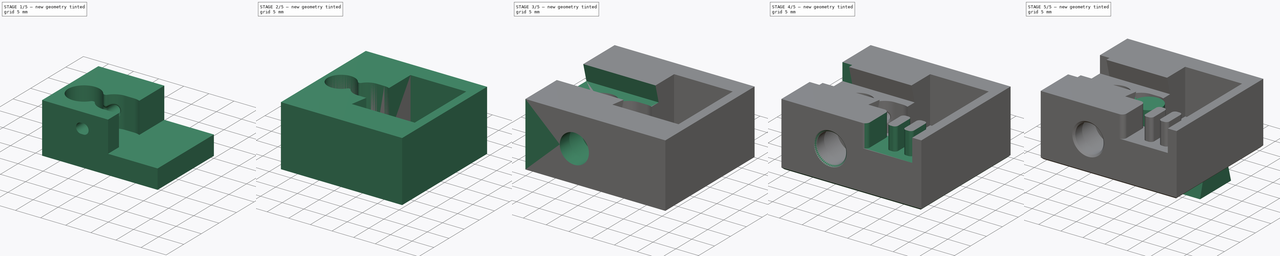
[diagram: build sequence overview — one tinted view per stage of 5, left to right]
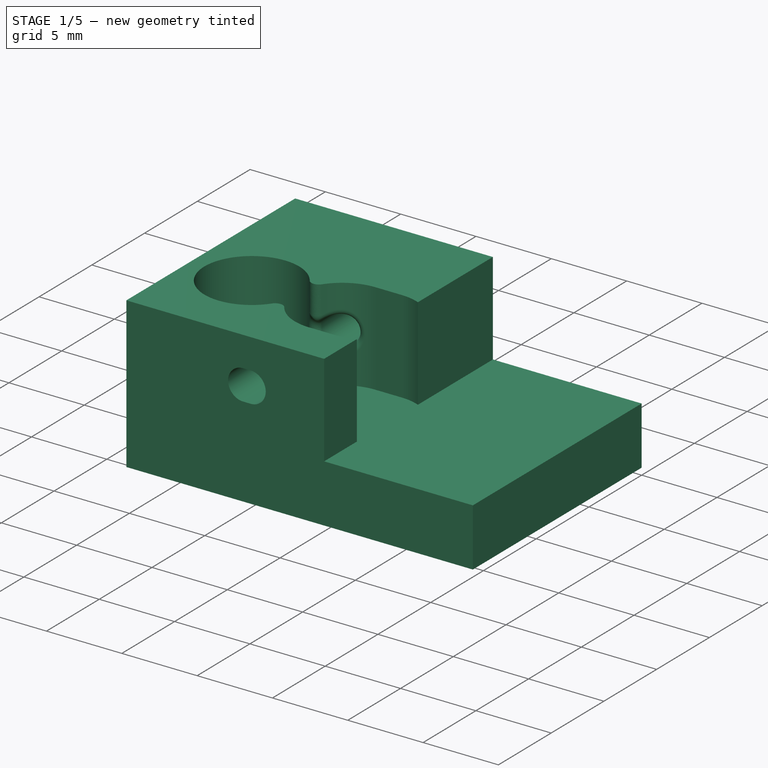
[diagram: stage 1 of 5 — iso view after this stage's code; geometry added in this stage tinted green]
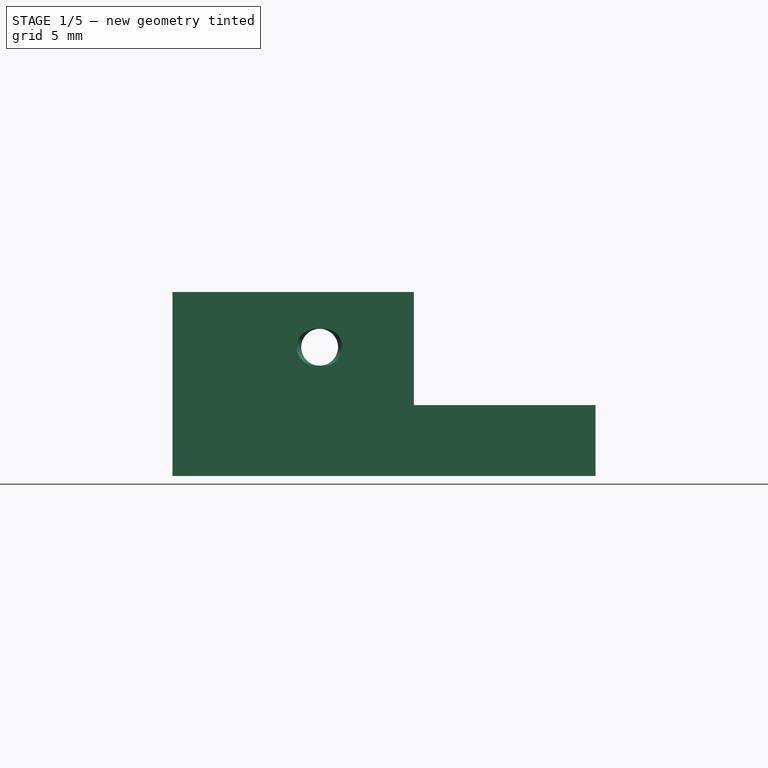
[diagram: stage 1 of 5 — front view after this stage's code; geometry added in this stage tinted green]
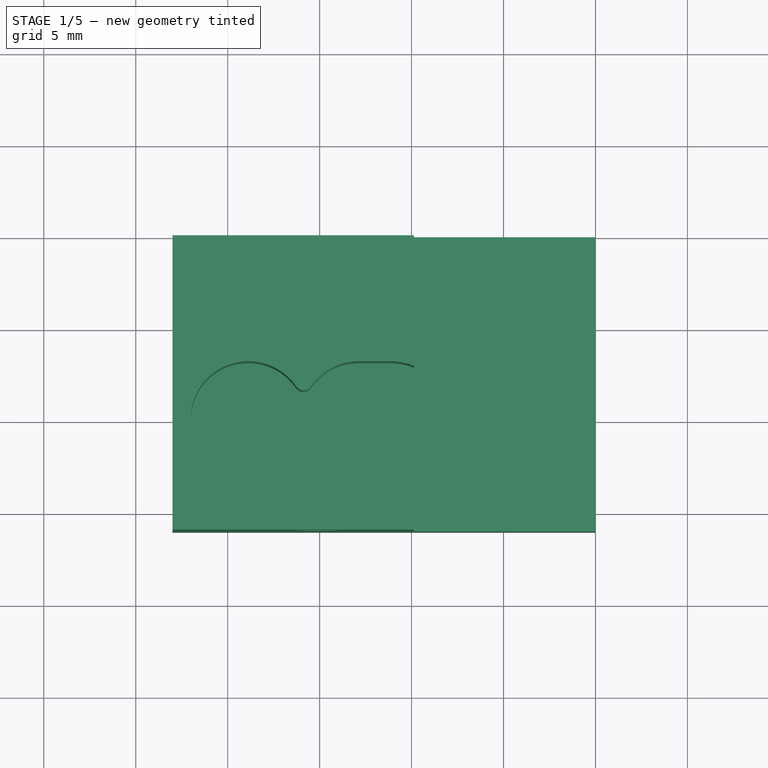
[diagram: stage 1 of 5 — top view after this stage's code; geometry added in this stage tinted green]
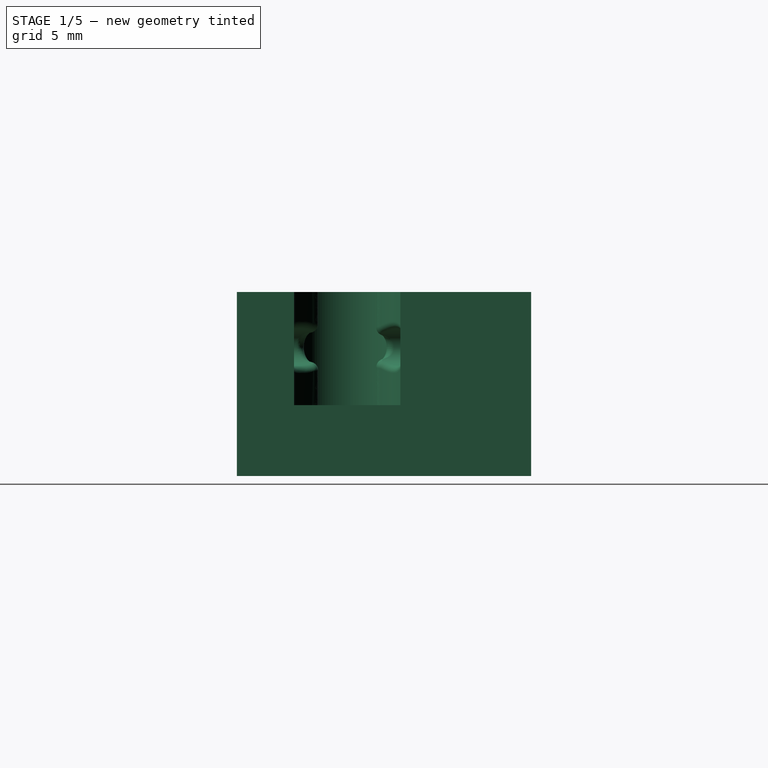
[diagram: stage 1 of 5 — right view after this stage's code; geometry added in this stage tinted green]
FCSTD DOCUMENT  (FreeCAD 0.19R24366 (Git))
Label: filament-sensor-draf
License: All rights reserved
LicenseURL: http://en.wikipedia.org/wiki/All_rights_reserved
objects: Sketcher::SketchObject×23, PartDesign::Pocket×18, PartDesign::Pad×7, PartDesign::Fillet×4, Part::Cylinder×3, PartDesign::Chamfer×2, PartDesign::Body×2, Part::Feature×1
note: 91 computed .brp shape members not serialized (recipe doc carries the construction recipe); baked Part::Feature solids carry a one-line shape summary decoded from their .brp

FEATURE [Sketcher::SketchObject] Sketch
  FullyConstrained = true
  MapMode = 5
  Support = -> [XY_Plane]
  sketch-geometry (4):
    g0: LineSegment StartX=-8 StartY=10 StartZ=0 EndX=15 EndY=10 EndZ=0
    g1: LineSegment StartX=15 StartY=10 StartZ=0 EndX=15 EndY=-6 EndZ=0
    g2: LineSegment StartX=15 StartY=-6 StartZ=0 EndX=-8 EndY=-6 EndZ=0
    g3: LineSegment StartX=-8 StartY=-6 StartZ=0 EndX=-8 EndY=10 EndZ=0
  constraints (12):
    c: Coincident(g0,g1)
    c: Coincident(g1,g2)
    c: Coincident(g2,g3)
    c: Coincident(g3,g0)
    c: Horizontal(g0)
    c: Horizontal(g2)
    c: Vertical(g1)
    c: Vertical(g3)
    c: DistanceY(g-1,g0) = 10
    c: DistanceY(g2,g-1) = 6
    c: DistanceX(g0,g-1) = 8
    c: DistanceX(g-1,g0) = 15
FEATURE [PartDesign::Pad] Pad
  Direction = (1,1,1)
  Length = 10
  Length2 = 100
  Profile = -> Sketch
  Type = 0
FEATURE [Sketcher::SketchObject] Sketch001
  FullyConstrained = false
  MapMode = 5
  Placement = pos=(0,0,10) rot=(0,0,1;0rad)
  Support = -> [Pad]
  sketch-geometry (6):
    g0: ArcOfCircle CenterX=-3.875 CenterY=0 CenterZ=0 NormalX=0 NormalY=0 NormalZ=1 AngleXU=0 Radius=3.15 StartAngle=0.309845 EndAngle=5.97334
    g1: ArcOfCircle CenterX=2.125 CenterY=0 CenterZ=0 NormalX=0 NormalY=0 NormalZ=1 AngleXU=0 Radius=3.15 StartAngle=1.5708 EndAngle=2.83175
    g2: ArcOfCircle CenterX=3.875 CenterY=-1e-16 CenterZ=0 NormalX=0 NormalY=0 NormalZ=1 AngleXU=0 Radius=3.15 StartAngle=4.71239 EndAngle=7.85398
    g3: LineSegment StartX=2.125 StartY=-3.15 StartZ=0 EndX=3.875 EndY=-3.15 EndZ=0
    g4: LineSegment StartX=2.125 StartY=3.15 StartZ=0 EndX=3.875 EndY=3.15 EndZ=0
    g5: ArcOfCircle CenterX=2.125 CenterY=0 CenterZ=0 NormalX=0 NormalY=0 NormalZ=1 AngleXU=0 Radius=3.15 StartAngle=3.45144 EndAngle=4.71239
  constraints (17):
    c: PointOnObject(g0,g-1)
    c: Tangent(g1,g4) = 1.5708
    c: Coincident(g5,g3) = -1.5708
    c: Tangent(g3,g2) = -1.5708
    c: Tangent(g4,g2) = 1.5708
    c: Horizontal(g3)
    c: Equal(g1,g2)
    c: PointOnObject(g1,g-1)
    c: Equal(g0,g1)
    c: Radius(g0) = 3.15
    c: DistanceX(g0,g-1) = 3.875
    c: DistanceX(g-1,g1) = 2.125
    c: DistanceX(g1,g2) = 1.75
    c: Equal(g1,g5)
    c: Coincident(g1,g5)
    c: Coincident(g0,g1)
    c: Coincident(g0,g5)
FEATURE [PartDesign::Pocket] Pocket
  BaseFeature = -> Pad
  Length = 6.15
  Length2 = 100
  Profile = -> Sketch001
  Type = 0
FEATURE [PartDesign::Fillet] Fillet
  Base = -> Pocket [Edge28,Edge20]
  BaseFeature = -> Pocket
  Radius = 0.5
  SupportTransform = false
FEATURE [Sketcher::SketchObject] Sketch002
  FullyConstrained = true
  MapMode = 5
  Placement = pos=(0,10,0) rot=(0,0.707107,0.707107;3.14159rad)
  Support = -> [Fillet]
  sketch-geometry (1):
    g0: Circle CenterX=0 CenterY=7 CenterZ=0 NormalX=0 NormalY=0 NormalZ=1 AngleXU=0 Radius=1
  constraints (3):
    c: PointOnObject(g0,g-2)
    c: DistanceY(g-1,g0) = 7
    c: Radius(g0) = 1
FEATURE [PartDesign::Pocket] Pocket001
  BaseFeature = -> Fillet
  Length = 10
  Length2 = 100
  Profile = -> Sketch002
  Type = 0
FEATURE [Sketcher::SketchObject] Sketch003
  FullyConstrained = true
  MapMode = 5
  Placement = pos=(0,-6,0) rot=(1,0,0;1.5708rad)
  Support = -> [Pocket001]
  sketch-geometry (4):
    g0: ArcOfCircle CenterX=-0.25 CenterY=7 CenterZ=0 NormalX=0 NormalY=0 NormalZ=1 AngleXU=0 Radius=1 StartAngle=1.5708 EndAngle=4.71239
    g1: ArcOfCircle CenterX=0.25 CenterY=7 CenterZ=0 NormalX=0 NormalY=0 NormalZ=1 AngleXU=0 Radius=1 StartAngle=4.71239 EndAngle=7.85398
    g2: LineSegment StartX=-0.25 StartY=6 StartZ=0 EndX=0.25 EndY=6 EndZ=0
    g3: LineSegment StartX=-0.25 StartY=8 StartZ=0 EndX=0.25 EndY=8 EndZ=0
  constraints (10):
    c: Tangent(g0,g3) = 1.5708
    c: Tangent(g0,g2) = -1.5708
    c: Tangent(g2,g1) = -1.5708
    c: Tangent(g3,g1) = 1.5708
    c: Horizontal(g2)
    c: Equal(g0,g1)
    c: DistanceY(g-1,g0) = 7
    c: Radius(g0) = 1
    c: DistanceX(g0,g1) = 0.5
    c: DistanceX(g0,g-1) = 0.25
FEATURE [PartDesign::Pocket] Pocket002
  BaseFeature = -> Pocket001
  Length = 5
  Length2 = 100
  Profile = -> Sketch003
  Type = 0
FEATURE [PartDesign::Fillet] Fillet001
  Base = -> Pocket002 [Edge18,Edge29]
  BaseFeature = -> Pocket002
  Radius = 0.4
  SupportTransform = false
FEATURE [Sketcher::SketchObject] Sketch004
  ExternalGeometry = -> [Fillet001]
  FullyConstrained = true
  MapMode = 5
  Placement = pos=(0,0,10) rot=(0,0,1;0rad)
  Support = -> [Fillet001]
  sketch-geometry (5):
    g0: LineSegment StartX=15 StartY=10 StartZ=0 EndX=5.125 EndY=10 EndZ=0
    g1: LineSegment StartX=5.125 StartY=10 StartZ=0 EndX=5.125 EndY=-6 EndZ=0
    g2: LineSegment StartX=5.125 StartY=-6 StartZ=0 EndX=15 EndY=-6 EndZ=0
    g3: LineSegment StartX=15 StartY=-6 StartZ=0 EndX=15 EndY=10 EndZ=0
    g4: LineSegment StartX=3.875 StartY=-1e-16 StartZ=0 EndX=7.025 EndY=-1e-16 EndZ=0
  constraints (14):
    c: Coincident(g0,g1)
    c: Coincident(g1,g2)
    c: Coincident(g2,g3)
    c: Coincident(g3,g0)
    c: Horizontal(g0)
    c: Horizontal(g2)
    c: Vertical(g1)
    c: Vertical(g3)
    c: Coincident(g0,g-3)
    c: PointOnObject(g1,g-4)
    c: Coincident(g4,g-5)
    c: PointOnObject(g4,g-5)
    c: Horizontal(g4)
    c: DistanceX(g1,g4) = 1.9
FEATURE [PartDesign::Pocket] Pocket003
  BaseFeature = -> Fillet001
  Length = 6.15
  Length2 = 100
  Profile = -> Sketch004
  Refine = true
  Type = 0
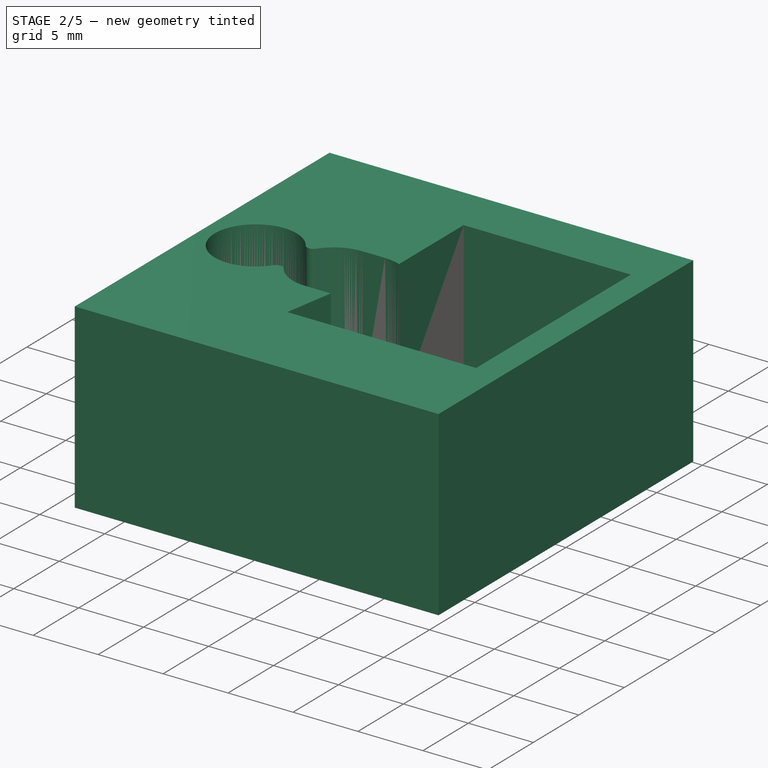
[diagram: stage 2 of 5 — iso view after this stage's code; geometry added in this stage tinted green]
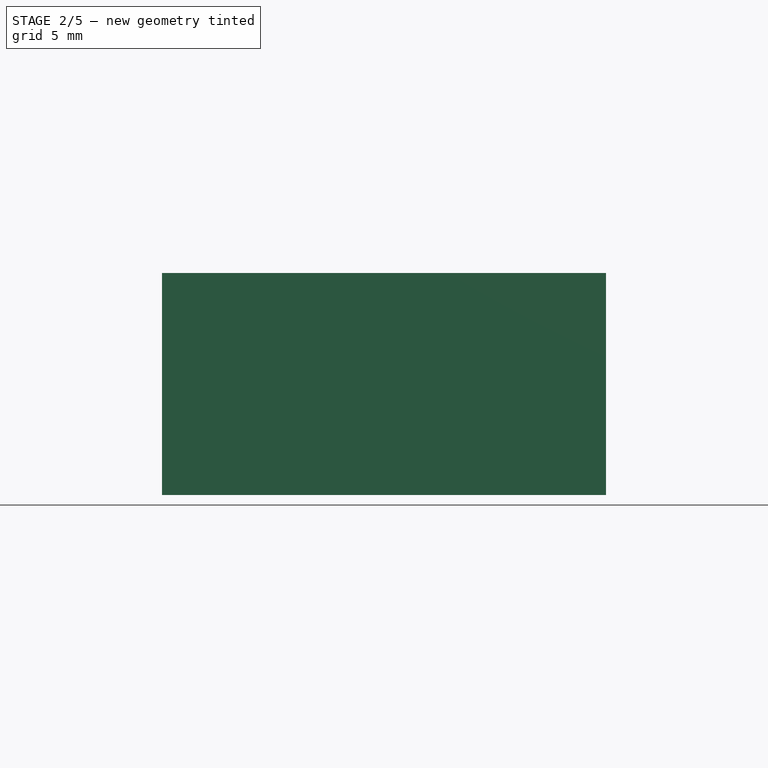
[diagram: stage 2 of 5 — front view after this stage's code; geometry added in this stage tinted green]
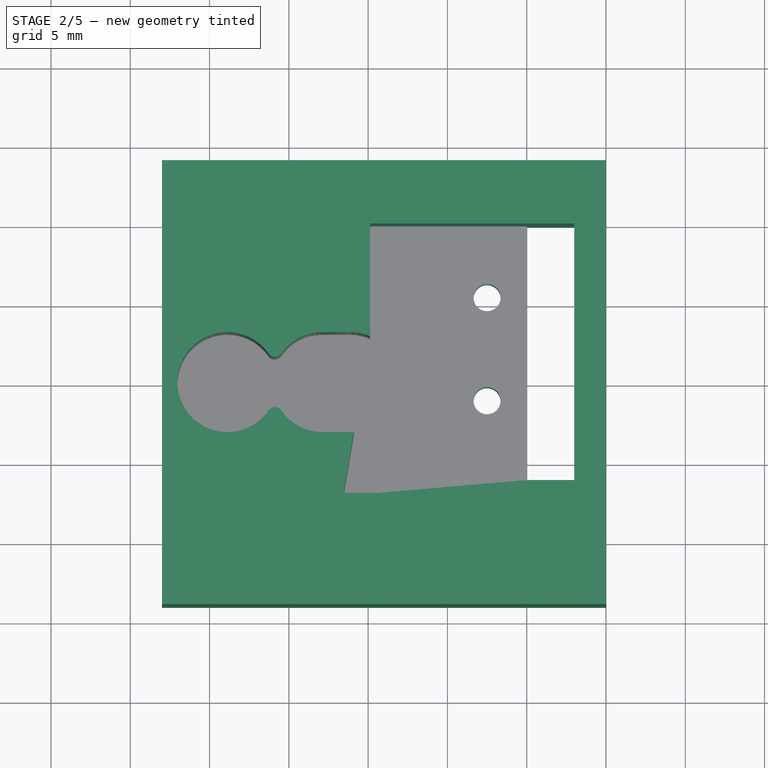
[diagram: stage 2 of 5 — top view after this stage's code; geometry added in this stage tinted green]
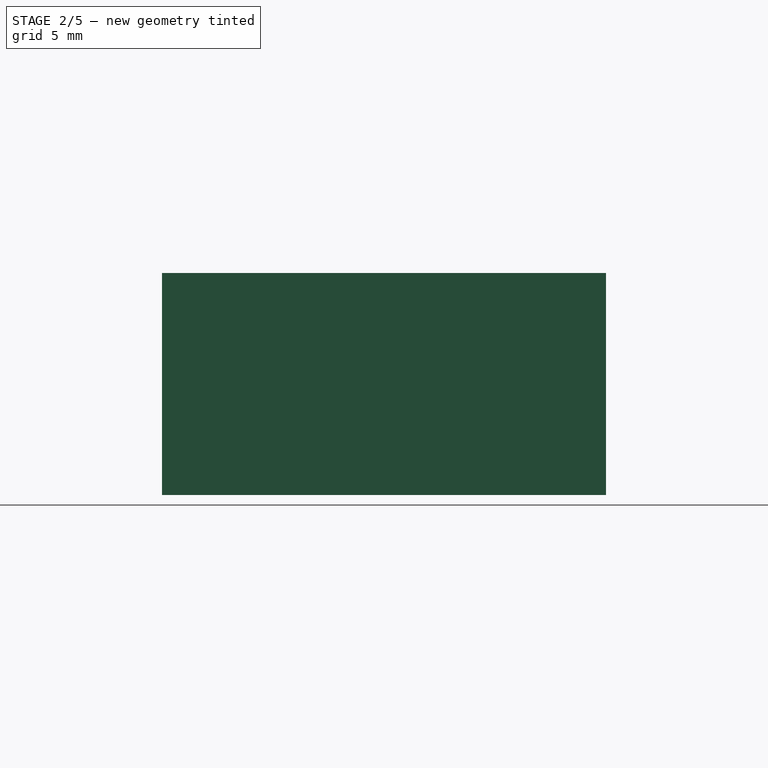
[diagram: stage 2 of 5 — right view after this stage's code; geometry added in this stage tinted green]
FEATURE [Sketcher::SketchObject] Sketch005
  ExternalGeometry = -> [Pocket003]
  FullyConstrained = true
  MapMode = 5
  Placement = pos=(0,0,3.85) rot=(0,0,1;0rad)
  Support = -> [Pocket003]
  sketch-geometry (2):
    g0: Circle CenterX=12.5 CenterY=5.5 CenterZ=0 NormalX=0 NormalY=0 NormalZ=1 AngleXU=0 Radius=0.85
    g1: Circle CenterX=12.5 CenterY=-1 CenterZ=0 NormalX=0 NormalY=0 NormalZ=1 AngleXU=0 Radius=0.85
  constraints (6):
    c: Vertical(g1,g0)
    c: Equal(g1,g0)
    c: DistanceX(g1,g-3) = 2.5
    c: DistanceY(g-3,g1) = 5
    c: DistanceY(g1,g0) = 6.5
    c: Radius(g0) = 0.85
FEATURE [PartDesign::Pocket] Pocket004
  BaseFeature = -> Pocket003
  Length = 5
  Length2 = 100
  Profile = -> Sketch005
  Type = 1
FEATURE [Sketcher::SketchObject] Sketch006
  ExternalGeometry = -> [Pocket004]
  FullyConstrained = true
  MapMode = 5
  Placement = pos=(0,0,10) rot=(0,0,1;0rad)
  Support = -> [Pocket004]
  sketch-geometry (3):
    g0: LineSegment StartX=5.125 StartY=2.89137 StartZ=0 EndX=3.625 EndY=-6 EndZ=0
    g1: LineSegment StartX=5.125 StartY=-6 StartZ=0 EndX=5.125 EndY=2.89137 EndZ=0
    g2: LineSegment StartX=5.125 StartY=-6 StartZ=0 EndX=3.625 EndY=-6 EndZ=0
  constraints (7):
    c: Coincident(g0,g-3)
    c: PointOnObject(g0,g-4)
    c: Coincident(g1,g-4)
    c: Coincident(g1,g0)
    c: Coincident(g2,g1)
    c: Coincident(g2,g0)
    c: DistanceX(g2,g2) = 1.5
FEATURE [PartDesign::Pocket] Pocket005
  BaseFeature = -> Pocket004
  Length = 6.15
  Length2 = 100
  Profile = -> Sketch006
  Refine = true
  Type = 0
FEATURE [Sketcher::SketchObject] Sketch007
  ExternalGeometry = -> [Pocket005]
  FullyConstrained = true
  MapMode = 5
  Placement = pos=(0,0,0) rot=(1,0,0;3.14159rad)
  Support = -> [Pocket005]
  sketch-geometry (8):
    g0: LineSegment StartX=-8 StartY=-10 StartZ=0 EndX=15 EndY=-10 EndZ=0
    g1: LineSegment StartX=15 StartY=-10 StartZ=0 EndX=15 EndY=6 EndZ=0
    g2: LineSegment StartX=15 StartY=6 StartZ=0 EndX=-8 EndY=6 EndZ=0
    g3: LineSegment StartX=-8 StartY=6 StartZ=0 EndX=-8 EndY=14 EndZ=0
    g4: LineSegment StartX=-8 StartY=14 StartZ=0 EndX=20 EndY=14 EndZ=0
    g5: LineSegment StartX=20 StartY=14 StartZ=0 EndX=20 EndY=-14 EndZ=0
    g6: LineSegment StartX=20 StartY=-14 StartZ=0 EndX=-8 EndY=-14 EndZ=0
    g7: LineSegment StartX=-8 StartY=-14 StartZ=0 EndX=-8 EndY=-10 EndZ=0
  constraints (20):
    c: Coincident(g-4,g0)
    c: Coincident(g0,g-5)
    c: Coincident(g0,g1)
    c: Coincident(g1,g-5)
    c: Coincident(g1,g2)
    c: Coincident(g2,g-3)
    c: Coincident(g2,g3)
    c: Vertical(g3)
    c: Coincident(g3,g4)
    c: Horizontal(g4)
    c: Coincident(g4,g5)
    c: Vertical(g5)
    c: Coincident(g5,g6)
    c: Horizontal(g6)
    c: Coincident(g6,g7)
    c: Coincident(g7,g0)
    c: Vertical(g7)
    c: DistanceY(g7,g7) = 4
    c: DistanceY(g3,g3) = 8
    c: DistanceX(g1,g4) = 5
FEATURE [PartDesign::Pad] Pad001
  BaseFeature = -> Pocket005
  Direction = (1,1,1)
  Length = 10
  Length2 = 100
  Profile = -> Sketch007
  Refine = true
  Reversed = true
  Type = 0
FEATURE [Sketcher::SketchObject] Sketch008
  ExternalGeometry = -> [Pad001]
  FullyConstrained = true
  MapMode = 5
  Placement = pos=(0,0,10) rot=(0,0,1;0rad)
  Support = -> [Pad001]
  sketch-geometry (4):
    g0: LineSegment StartX=15 StartY=10 StartZ=0 EndX=18 EndY=10 EndZ=0
    g1: LineSegment StartX=18 StartY=10 StartZ=0 EndX=18 EndY=-6 EndZ=0
    g2: LineSegment StartX=18 StartY=-6 StartZ=0 EndX=15 EndY=-6 EndZ=0
    g3: LineSegment StartX=15 StartY=-6 StartZ=0 EndX=15 EndY=10 EndZ=0
  constraints (11):
    c: Coincident(g0,g1)
    c: Coincident(g1,g2)
    c: Coincident(g2,g3)
    c: Coincident(g3,g0)
    c: Horizontal(g0)
    c: Horizontal(g2)
    c: Vertical(g1)
    c: Vertical(g3)
    c: Coincident(g0,g-3)
    c: Horizontal(g1,g-3)
    c: DistanceX(g0,g0) = 3
FEATURE [PartDesign::Pocket] Pocket006
  BaseFeature = -> Pad001
  Length = 5
  Length2 = 100
  Profile = -> Sketch008
  Type = 1
FEATURE [Sketcher::SketchObject] Sketch009
  ExternalGeometry = -> [Pocket006]
  FullyConstrained = true
  MapMode = 5
  Placement = pos=(0,0,10) rot=(0,0,1;0rad)
  Support = -> [Pocket006]
  sketch-geometry (4):
    g0: LineSegment StartX=3.625 StartY=-6 StartZ=0 EndX=3.4563 EndY=-7 EndZ=0
    g1: LineSegment StartX=3.4563 StartY=-7 StartZ=0 EndX=18 EndY=-7 EndZ=0
    g2: LineSegment StartX=18 StartY=-7 StartZ=0 EndX=18 EndY=-6 EndZ=0
    g3: LineSegment StartX=18 StartY=-6 StartZ=0 EndX=3.625 EndY=-6 EndZ=0
  constraints (10):
    c: Coincident(g-3,g0)
    c: Coincident(g0,g1)
    c: Horizontal(g1)
    c: Coincident(g1,g2)
    c: Coincident(g2,g-4)
    c: Coincident(g2,g3)
    c: Coincident(g3,g0)
    c: Vertical(g2)
    c: DistanceY(g2,g2) = 1
    c: Parallel(g0,g-5)
FEATURE [PartDesign::Pocket] Pocket007
  BaseFeature = -> Pocket006
  Length = 0
  Length2 = 100
  Profile = -> Sketch009
  Refine = true
  Type = 3
  UpToFace = -> Pocket006 [Face26]
FEATURE [PartDesign::Pad] Pad002
  BaseFeature = -> Pocket007
  Direction = (1,1,1)
  Length = 4
  Length2 = 100
  Profile = -> Pocket007 [Face5]
  Refine = true
  Type = 0
FEATURE [Sketcher::SketchObject] Sketch010
  FullyConstrained = true
  MapMode = 5
  Placement = pos=(0,14,0) rot=(0,0.707107,0.707107;3.14159rad)
  Support = -> [Pad002]
  sketch-geometry (1):
    g0: Circle CenterX=0 CenterY=7 CenterZ=0 NormalX=0 NormalY=0 NormalZ=1 AngleXU=0 Radius=3.2
  constraints (3):
    c: PointOnObject(g0,g-2)
    c: DistanceY(g-1,g0) = 7
    c: Radius(g0) = 3.2
FEATURE [PartDesign::Pocket] Pocket008
  BaseFeature = -> Pad002
  Length = 3
  Length2 = 100
  Profile = -> Sketch010
  Type = 0
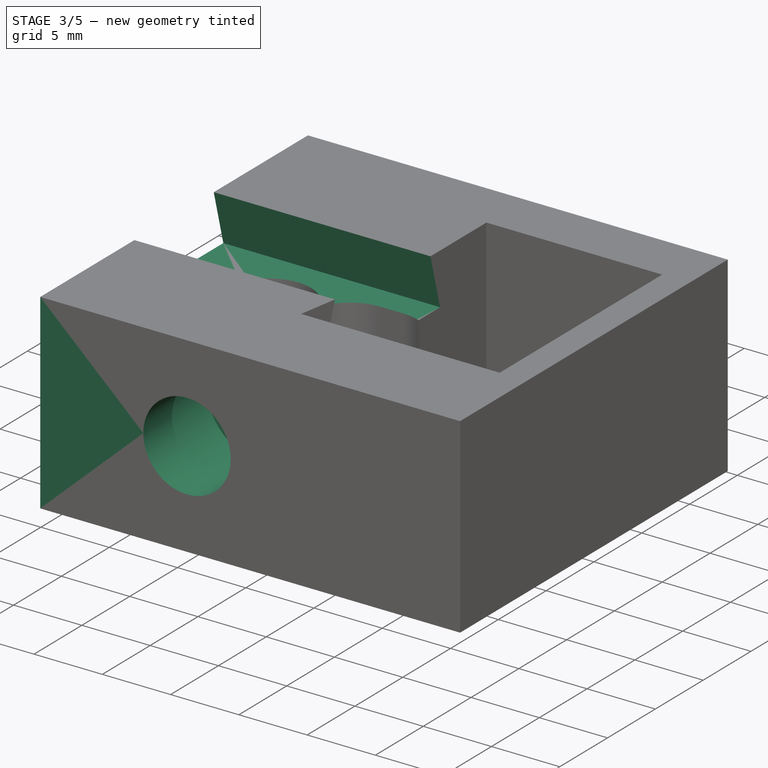
[diagram: stage 3 of 5 — iso view after this stage's code; geometry added in this stage tinted green]
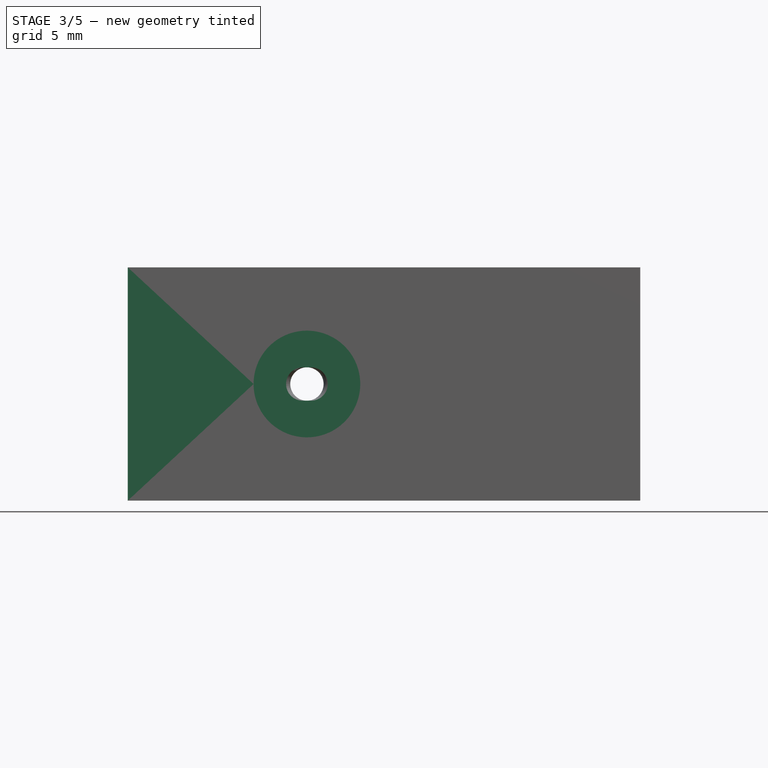
[diagram: stage 3 of 5 — front view after this stage's code; geometry added in this stage tinted green]
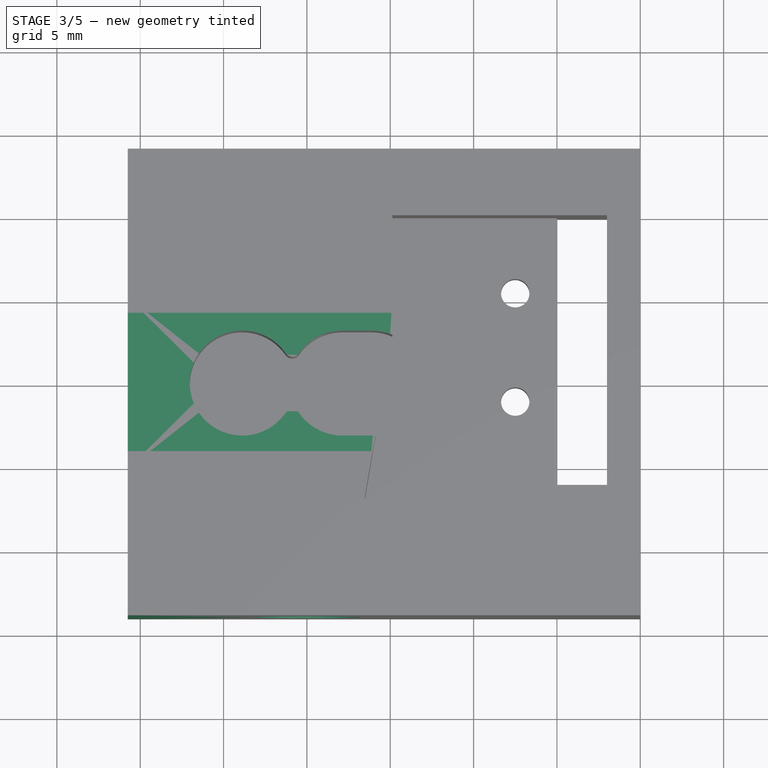
[diagram: stage 3 of 5 — top view after this stage's code; geometry added in this stage tinted green]
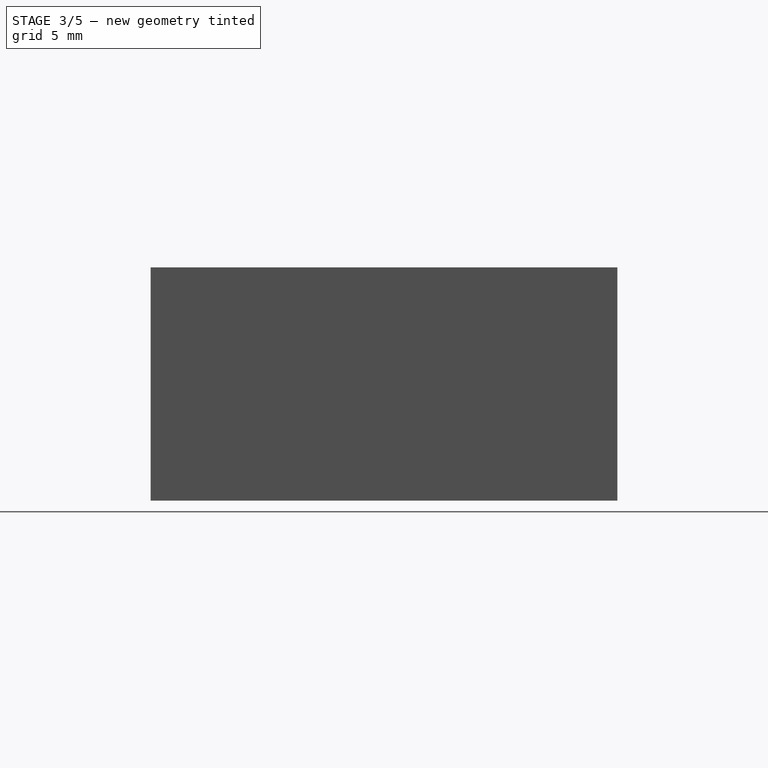
[diagram: stage 3 of 5 — right view after this stage's code; geometry added in this stage tinted green]
FEATURE [Sketcher::SketchObject] Sketch011
  ExternalGeometry = -> [Pocket008]
  FullyConstrained = true
  MapMode = 5
  Placement = pos=(0,11,0) rot=(0,0.707107,0.707107;3.14159rad)
  Support = -> [Pocket008]
  sketch-geometry (1):
    g0: Circle CenterX=0 CenterY=7 CenterZ=0 NormalX=0 NormalY=0 NormalZ=1 AngleXU=0 Radius=4.25
  constraints (2):
    c: Coincident(g0,g-3)
    c: Radius(g0) = 4.25
FEATURE [PartDesign::Pocket] Pocket009
  BaseFeature = -> Pocket008
  Length = 5
  Length2 = 100
  Profile = -> Sketch011
  Type = 0
FEATURE [Sketcher::SketchObject] Sketch012
  FullyConstrained = true
  MapMode = 5
  Placement = pos=(0,-14,0) rot=(1,0,0;1.5708rad)
  Support = -> [Pocket009]
  sketch-geometry (1):
    g0: Circle CenterX=0 CenterY=7 CenterZ=0 NormalX=0 NormalY=0 NormalZ=1 AngleXU=0 Radius=3.2
  constraints (3):
    c: PointOnObject(g0,g-2)
    c: Radius(g0) = 3.2
    c: DistanceY(g-1,g0) = 7
FEATURE [PartDesign::Pocket] Pocket010
  BaseFeature = -> Pocket009
  Length = 3
  Length2 = 100
  Profile = -> Sketch012
  Type = 0
FEATURE [Sketcher::SketchObject] Sketch013
  ExternalGeometry = -> [Pocket010]
  FullyConstrained = true
  MapMode = 5
  Placement = pos=(0,-11,0) rot=(1,0,0;1.5708rad)
  Support = -> [Pocket010]
  sketch-geometry (1):
    g0: Circle CenterX=0 CenterY=7 CenterZ=0 NormalX=0 NormalY=0 NormalZ=1 AngleXU=0 Radius=4.25
  constraints (2):
    c: Coincident(g0,g-3)
    c: Radius(g0) = 4.25
FEATURE [PartDesign::Pocket] Pocket011
  BaseFeature = -> Pocket010
  Length = 5
  Length2 = 100
  Profile = -> Sketch013
  Type = 0
FEATURE [PartDesign::Pad] Pad003
  BaseFeature = -> Pocket011
  Direction = (1,1,1)
  Length = 2.75
  Length2 = 100
  Profile = -> Pocket011 [Face2]
  Refine = true
  Type = 0
FEATURE [Sketcher::SketchObject] Sketch014
  ExternalGeometry = -> [Pad003]
  FullyConstrained = true
  MapMode = 5
  Placement = pos=(-10.75,0,0) rot=(0.57735,-0.57735,-0.57735;2.0944rad)
  Support = -> [Pad003]
  sketch-geometry (2):
    g0: Circle CenterX=-9 CenterY=7 CenterZ=0 NormalX=0 NormalY=0 NormalZ=1 AngleXU=0 Radius=2.3
    g1: Circle CenterX=9 CenterY=7 CenterZ=0 NormalX=0 NormalY=0 NormalZ=1 AngleXU=0 Radius=2.3
  constraints (6):
    c: Equal(g1,g0)
    c: Horizontal(g0,g1)
    c: Radius(g0) = 2.3
    c: DistanceX(g-4,g0) = 5
    c: DistanceX(g1,g-3) = 5
    c: DistanceY(g-1,g1) = 7
FEATURE [PartDesign::Pocket] Pocket012
  BaseFeature = -> Pad003
  Length = 5
  Length2 = 100
  Profile = -> Sketch014
  Type = 0
FEATURE [Sketcher::SketchObject] Sketch015
  ExternalGeometry = -> [Pocket012]
  FullyConstrained = true
  MapMode = 5
  Placement = pos=(-10.75,0,0) rot=(0.57735,-0.57735,-0.57735;2.0944rad)
  Support = -> [Pocket012]
  sketch-geometry (4):
    g0: LineSegment StartX=-4.15 StartY=14 StartZ=0 EndX=-5.15 EndY=10.25 EndZ=0
    g1: LineSegment StartX=-5.15 StartY=10.25 StartZ=0 EndX=5.15 EndY=10.25 EndZ=0
    g2: LineSegment StartX=5.15 StartY=10.25 StartZ=0 EndX=4.15 EndY=14 EndZ=0
    g3: LineSegment StartX=4.15 StartY=14 StartZ=0 EndX=-4.15 EndY=14 EndZ=0
  constraints (12):
    c: PointOnObject(g0,g-3)
    c: Coincident(g0,g1)
    c: Horizontal(g1)
    c: Coincident(g1,g2)
    c: PointOnObject(g2,g-3)
    c: Coincident(g2,g3)
    c: Coincident(g3,g0)
    c: DistanceX(g3,g3) = 8.3
    c: DistanceX(g0,g-1) = 4.15
    c: DistanceX(g1,g1) = 10.3
    c: DistanceX(g0,g-1) = 5.15
    c: DistanceY(g0,g0) = 3.75
FEATURE [PartDesign::Pocket] Pocket013
  BaseFeature = -> Pocket012
  Length = 20
  Length2 = 100
  Profile = -> Sketch015
  Type = 0
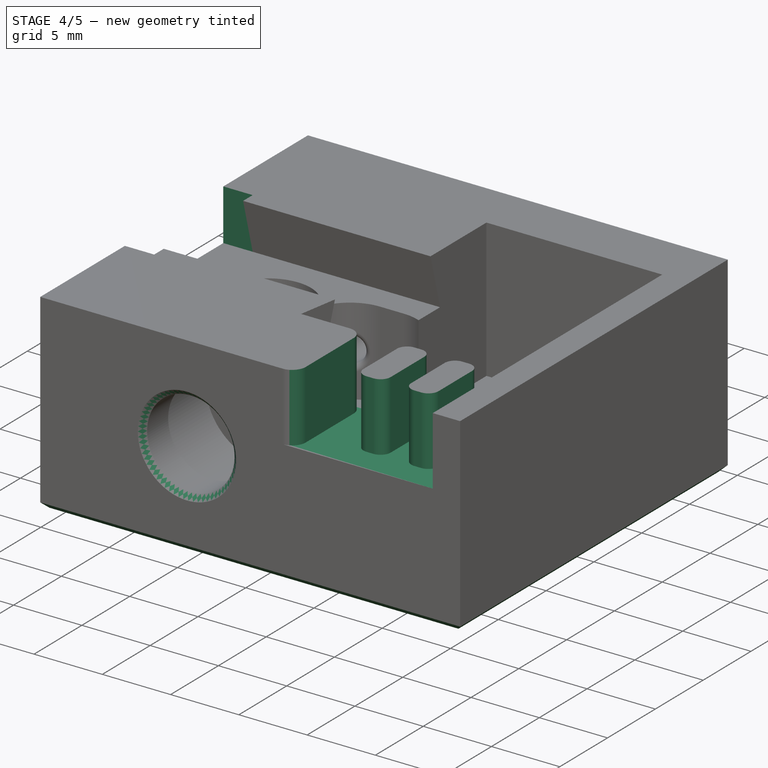
[diagram: stage 4 of 5 — iso view after this stage's code; geometry added in this stage tinted green]
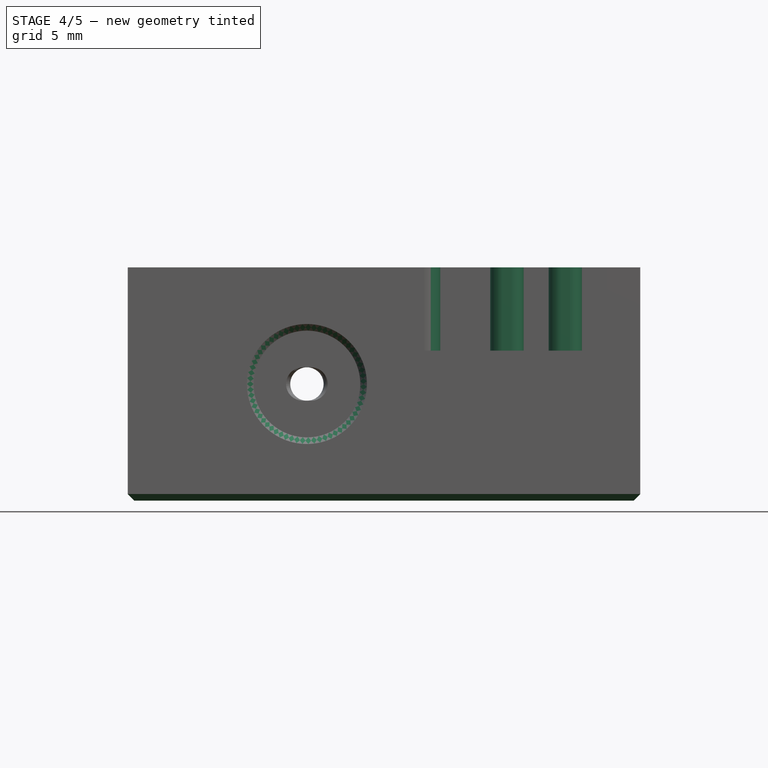
[diagram: stage 4 of 5 — front view after this stage's code; geometry added in this stage tinted green]
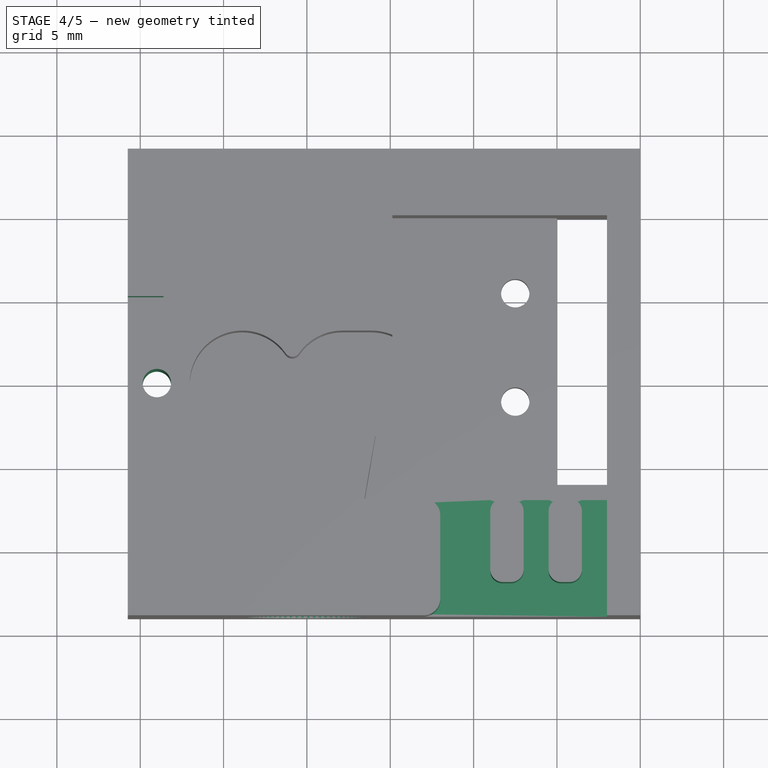
[diagram: stage 4 of 5 — top view after this stage's code; geometry added in this stage tinted green]
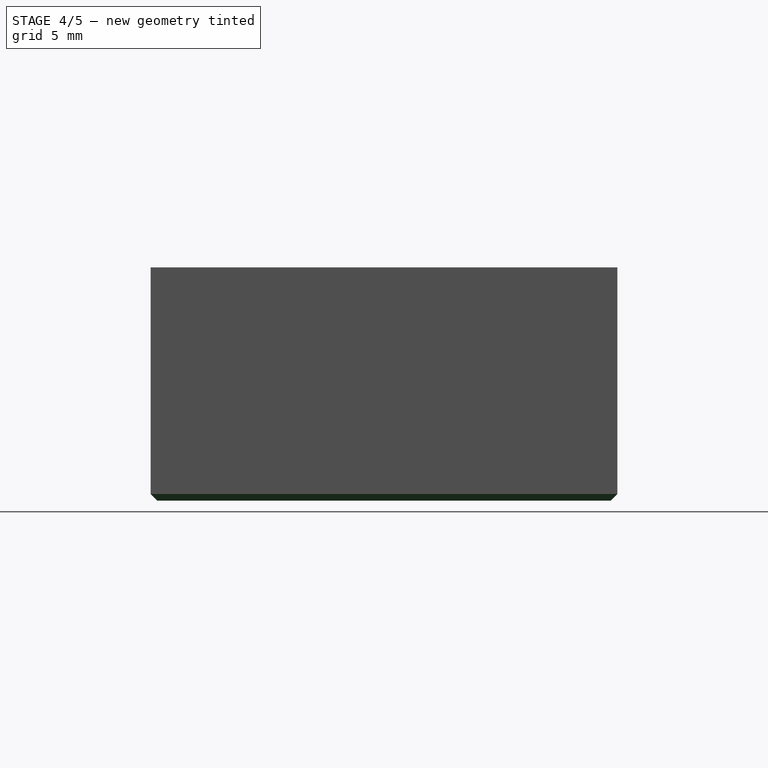
[diagram: stage 4 of 5 — right view after this stage's code; geometry added in this stage tinted green]
FEATURE [Sketcher::SketchObject] Sketch016
  ExternalGeometry = -> [Pocket013]
  FullyConstrained = true
  MapMode = 5
  Placement = pos=(-10.75,0,0) rot=(0.57735,-0.57735,-0.57735;2.0944rad)
  Support = -> [Pocket013]
  sketch-geometry (4):
    g0: LineSegment StartX=-5.15 StartY=10.25 StartZ=0 EndX=5.15 EndY=10.25 EndZ=0
    g1: LineSegment StartX=5.15 StartY=10.25 StartZ=0 EndX=5.15 EndY=14 EndZ=0
    g2: LineSegment StartX=5.15 StartY=14 StartZ=0 EndX=-5.15 EndY=14 EndZ=0
    g3: LineSegment StartX=-5.15 StartY=14 StartZ=0 EndX=-5.15 EndY=10.25 EndZ=0
  constraints (11):
    c: Coincident(g0,g1)
    c: Coincident(g1,g2)
    c: Coincident(g2,g3)
    c: Coincident(g3,g0)
    c: Horizontal(g0)
    c: Horizontal(g2)
    c: Vertical(g1)
    c: Vertical(g3)
    c: Coincident(g0,g-5)
    c: PointOnObject(g1,g-4)
    c: Vertical(g-5,g1)
FEATURE [PartDesign::Pocket] Pocket014
  BaseFeature = -> Pocket013
  Length = 2.15
  Length2 = 100
  Profile = -> Sketch016
  Refine = true
  Type = 0
FEATURE [Sketcher::SketchObject] Sketch017
  FullyConstrained = true
  MapMode = 5
  Placement = pos=(0,0,10.25) rot=(0,0,1;0rad)
  Support = -> [Pocket014]
  sketch-geometry (1):
    g0: Circle CenterX=-9 CenterY=0 CenterZ=0 NormalX=0 NormalY=0 NormalZ=1 AngleXU=0 Radius=0.85
  constraints (3):
    c: PointOnObject(g0,g-1)
    c: Radius(g0) = 0.85
    c: DistanceX(g0,g-1) = 9
FEATURE [PartDesign::Pocket] Pocket015
  BaseFeature = -> Pocket014
  Length = 5
  Length2 = 100
  Profile = -> Sketch017
  Type = 1
FEATURE [PartDesign::Chamfer] Chamfer
  Angle = 45
  Base = -> Pocket015 [Face3,Edge37,Edge38,Edge40,Edge8,Edge58,Edge20]
  BaseFeature = -> Pocket015
  ChamferType = 0
  FlipDirection = false
  Size = 0.4
  Size2 = 1
  SupportTransform = false
FEATURE [PartDesign::Body] Body001
  Group = -> [Sketch018,Pad004,Sketch019,Pad005,Sketch020,Pocket016,Chamfer001]
  Origin = -> Origin001
  Placement = pos=(-10.75,0,14) rot=(0,0,1;0rad)
  Tip = -> Chamfer001
FEATURE [Sketcher::SketchObject] Sketch021
  ExternalGeometry = -> [Chamfer]
  FullyConstrained = true
  MapMode = 5
  Placement = pos=(0,0,14) rot=(0,0,1;0rad)
  Support = -> [Chamfer]
  sketch-geometry (4):
    g0: LineSegment StartX=18 StartY=-7 StartZ=0 EndX=8 EndY=-7 EndZ=0
    g1: LineSegment StartX=8 StartY=-7 StartZ=0 EndX=8 EndY=-14 EndZ=0
    g2: LineSegment StartX=8 StartY=-14 StartZ=0 EndX=18 EndY=-14 EndZ=0
    g3: LineSegment StartX=18 StartY=-14 StartZ=0 EndX=18 EndY=-7 EndZ=0
  constraints (11):
    c: Coincident(g0,g1)
    c: Coincident(g1,g2)
    c: Coincident(g2,g3)
    c: Coincident(g3,g0)
    c: Horizontal(g0)
    c: Horizontal(g2)
    c: Vertical(g1)
    c: Vertical(g3)
    c: Coincident(g0,g-3)
    c: PointOnObject(g1,g-4)
    c: DistanceX(g0,g0) = 10
FEATURE [PartDesign::Pocket] Pocket017
  BaseFeature = -> Chamfer
  Length = 5
  Length2 = 100
  Profile = -> Sketch021
  Type = 0
FEATURE [PartDesign::Fillet] Fillet002
  Base = -> Pocket017 [Edge43,Edge8]
  BaseFeature = -> Pocket017
  Radius = 1
  SupportTransform = false
FEATURE [Sketcher::SketchObject] Sketch022
  ExternalGeometry = -> [Fillet002]
  FullyConstrained = true
  MapMode = 5
  Placement = pos=(0,0,9) rot=(0,0,1;0rad)
  Support = -> [Fillet002]
  sketch-geometry (8):
    g0: LineSegment StartX=11 StartY=-7 StartZ=0 EndX=13 EndY=-7 EndZ=0
    g1: LineSegment StartX=13 StartY=-7 StartZ=0 EndX=13 EndY=-12 EndZ=0
    g2: LineSegment StartX=13 StartY=-12 StartZ=0 EndX=11 EndY=-12 EndZ=0
    g3: LineSegment StartX=11 StartY=-12 StartZ=0 EndX=11 EndY=-7 EndZ=0
    g4: LineSegment StartX=14.5 StartY=-7 StartZ=0 EndX=16.5 EndY=-7 EndZ=0
    g5: LineSegment StartX=16.5 StartY=-7 StartZ=0 EndX=16.5 EndY=-12 EndZ=0
    g6: LineSegment StartX=16.5 StartY=-12 StartZ=0 EndX=14.5 EndY=-12 EndZ=0
    g7: LineSegment StartX=14.5 StartY=-12 StartZ=0 EndX=14.5 EndY=-7 EndZ=0
  constraints (25):
    c: Coincident(g0,g1)
    c: Coincident(g1,g2)
    c: Coincident(g2,g3)
    c: Coincident(g3,g0)
    c: Horizontal(g0)
    c: Horizontal(g2)
    c: Vertical(g1)
    c: Vertical(g3)
    c: PointOnObject(g0,g-3)
    c: Coincident(g4,g5)
    c: Coincident(g5,g6)
    c: Coincident(g6,g7)
    c: Coincident(g7,g4)
    c: Horizontal(g4)
    c: Horizontal(g6)
    c: Vertical(g5)
    c: Vertical(g7)
    c: PointOnObject(g4,g-3)
    c: Horizontal(g1,g6)
    c: Equal(g6,g2)
    c: DistanceX(g2,g2) = 2
    c: DistanceX(g-3,g-3) = 10
    c: DistanceX(g4,g-3) = 1.5
    c: DistanceX(g0,g4) = 1.5
    c: DistanceY(g5,g5) = 5
FEATURE [PartDesign::Pad] Pad006
  BaseFeature = -> Fillet002
  Direction = (1,1,1)
  Length = 10
  Length2 = 100
  Profile = -> Sketch022
  Refine = true
  Type = 3
  UpToFace = -> Fillet002 [Face2]
FEATURE [PartDesign::Fillet] Fillet003
  Base = -> Pad006 [Edge95,Edge97,Edge102,Edge104,Edge106,Edge100,Edge99,Edge93]
  BaseFeature = -> Pad006
  Radius = 0.75
  SupportTransform = false
FEATURE [PartDesign::Body] Body
  Group = -> [Sketch,Pad,Sketch001,Pocket,Fillet,Sketch002,Pocket001,Sketch003,Pocket002,Fillet001,Sketch004,Pocket003,Sketch005,Pocket004,Sketch006,Pocket005,Sketch007,Pad001,Sketch008,Pocket006,Sketch009,Pocket007,Pad002,Sketch010,Pocket008,Sketch011,Pocket009,Sketch012,Pocket010,Sketch013,Pocket011,Pad003,Sketch014,Pocket012,Sketch015,Pocket013,Sketch016,Pocket014,Sketch017,Pocket015,Chamfer,Sketch021,+5 more]
  Origin = -> Origin
  Tip = -> Fillet003
FEATURE [Part::Feature] Fillet003001
  shape: bbox 30.75 x 28 x 14 mm, 107 faces (baked)
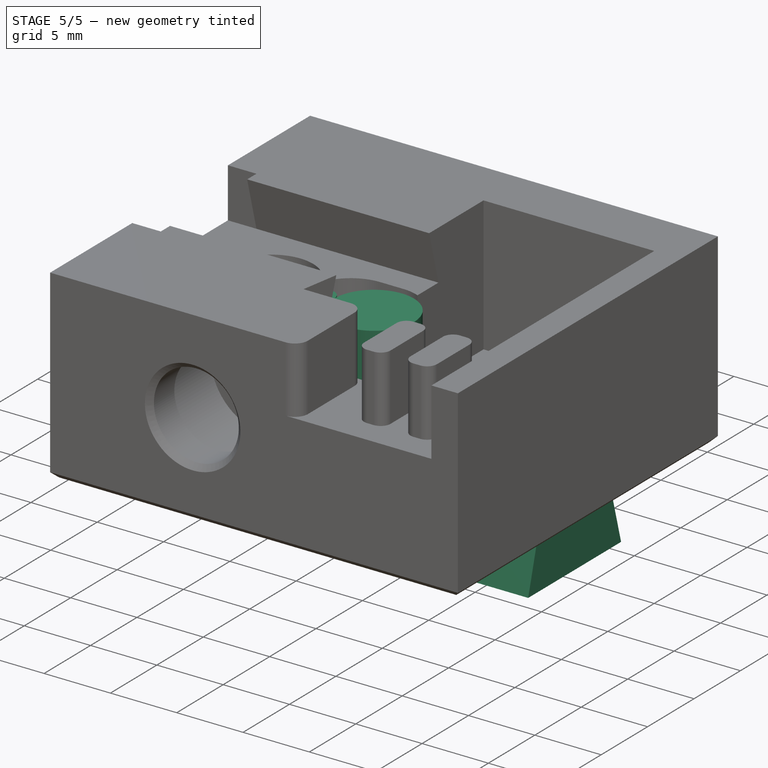
[diagram: stage 5 of 5 — iso view after this stage's code; geometry added in this stage tinted green]
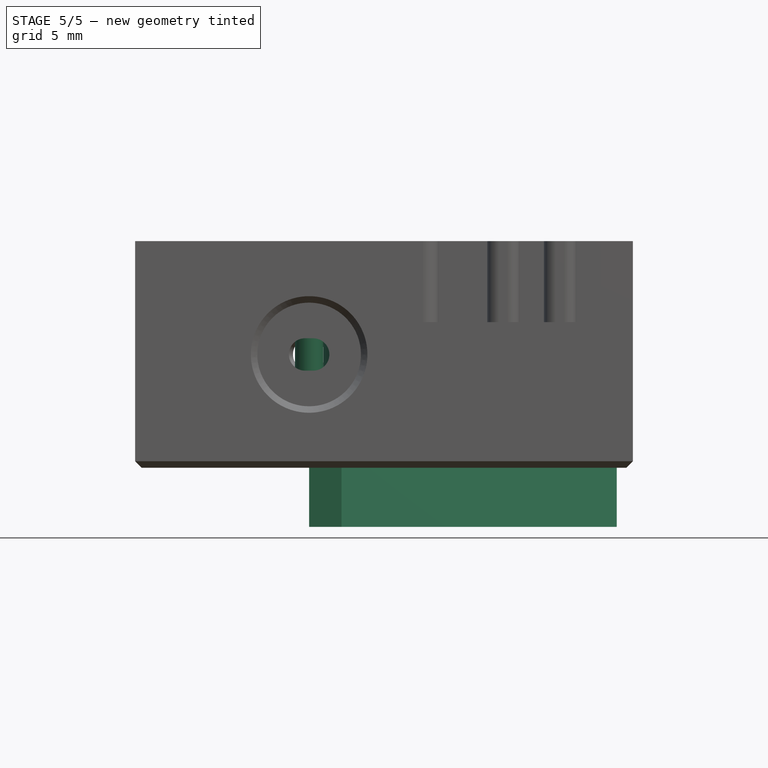
[diagram: stage 5 of 5 — front view after this stage's code; geometry added in this stage tinted green]
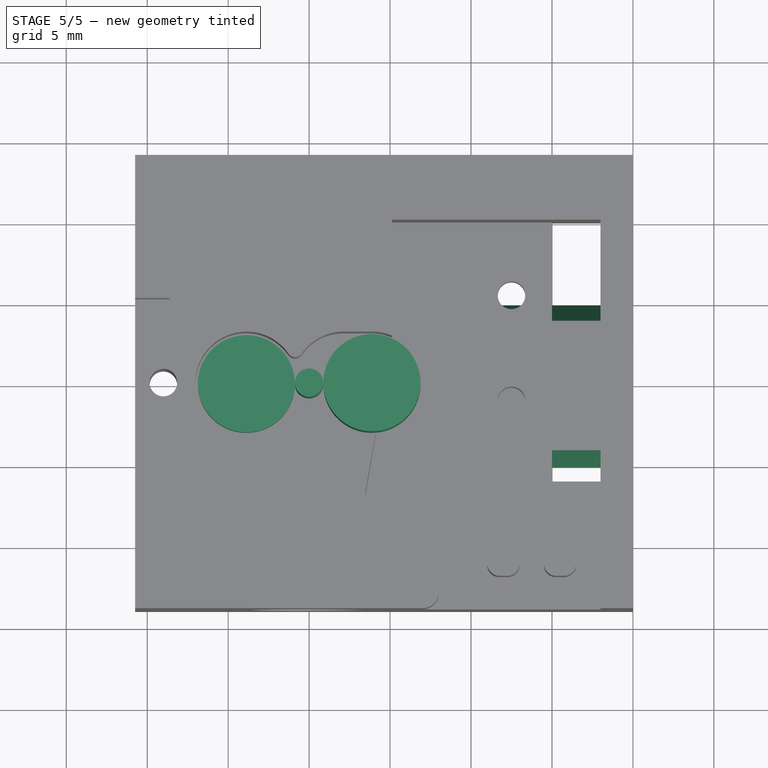
[diagram: stage 5 of 5 — top view after this stage's code; geometry added in this stage tinted green]
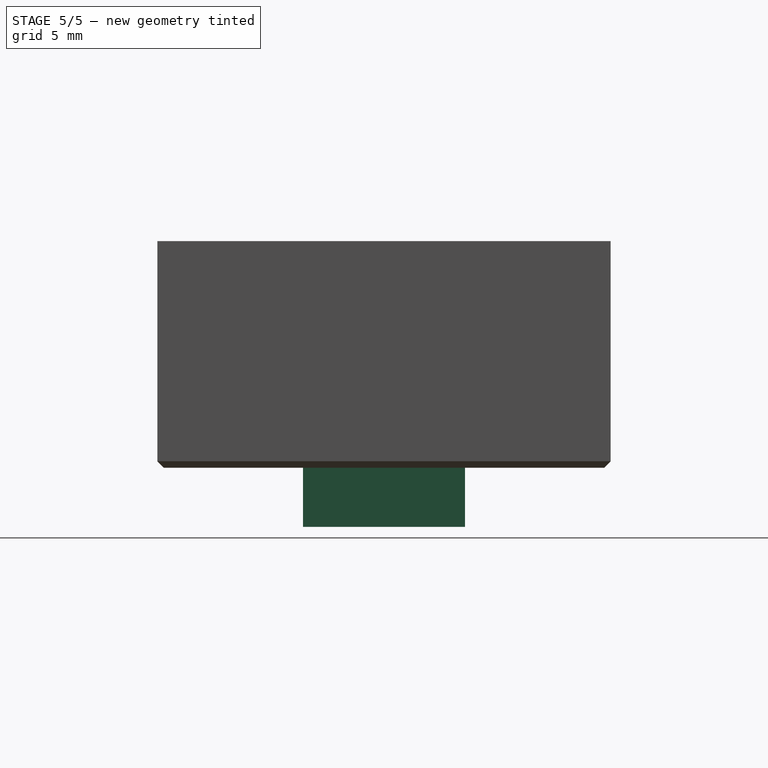
[diagram: stage 5 of 5 — right view after this stage's code; geometry added in this stage tinted green]
FEATURE [Part::Cylinder] Cylinder
  Angle = 360
  AttacherType = Attacher::AttachEngine3D
  Height = 6
  Placement = pos=(-3.875,0,0) rot=(0,0,1;0rad)
  Radius = 3
FEATURE [Part::Cylinder] Cylinder001
  Angle = 360
  AttacherType = Attacher::AttachEngine3D
  Height = 10
  Placement = pos=(3.88,0,0) rot=(0,0,1;0rad)
  Radius = 3
FEATURE [Part::Cylinder] Cylinder002
  Angle = 360
  AttacherType = Attacher::AttachEngine3D
  Height = 10
  Radius = 0.875
FEATURE [Sketcher::SketchObject] Sketch018
  FullyConstrained = true
  MapMode = 5
  Placement = pos=(0,0,0) rot=(0.57735,0.57735,0.57735;2.0944rad)
  Support = -> [YZ_Plane001]
  sketch-geometry (4):
    g0: LineSegment StartX=-4 StartY=0 StartZ=0 EndX=4 EndY=-1e-16 EndZ=0
    g1: LineSegment StartX=4 StartY=-1e-16 StartZ=0 EndX=5 EndY=-3.65 EndZ=0
    g2: LineSegment StartX=5 StartY=-3.65 StartZ=0 EndX=-5 EndY=-3.65 EndZ=0
    g3: LineSegment StartX=-5 StartY=-3.65 StartZ=0 EndX=-4 EndY=0 EndZ=0
  constraints (12):
    c: PointOnObject(g0,g-1)
    c: PointOnObject(g0,g-1)
    c: Coincident(g0,g1)
    c: Coincident(g1,g2)
    c: Horizontal(g2)
    c: Coincident(g2,g3)
    c: Coincident(g3,g0)
    c: DistanceX(g0,g0) = 8
    c: DistanceX(g2,g2) = 10
    c: DistanceX(g0,g-1) = 4
    c: DistanceX(g2,g-1) = 5
    c: DistanceY(g1,g0) = 3.65
FEATURE [PartDesign::Pad] Pad004
  Direction = (1,1,1)
  Length = 19
  Length2 = 100
  Placement = pos=(0,0,0) rot=(0.57735,0.57735,0.57735;2.0944rad)
  Profile = -> Sketch018
  Type = 0
FEATURE [Sketcher::SketchObject] Sketch019
  ExternalGeometry = -> [Pad004]
  FullyConstrained = true
  MapMode = 5
  Placement = pos=(0,0,0) rot=(0.57735,0.57735,-0.57735;4.18879rad)
  Support = -> [Pad004]
  sketch-geometry (4):
    g0: LineSegment StartX=5 StartY=3.65 StartZ=0 EndX=-5 EndY=3.65 EndZ=0
    g1: LineSegment StartX=-5 StartY=3.65 StartZ=0 EndX=-5 EndY=0 EndZ=0
    g2: LineSegment StartX=-5 StartY=0 StartZ=0 EndX=5 EndY=0 EndZ=0
    g3: LineSegment StartX=5 StartY=0 StartZ=0 EndX=5 EndY=3.65 EndZ=0
  constraints (11):
    c: Coincident(g0,g1)
    c: Coincident(g1,g2)
    c: Coincident(g2,g3)
    c: Coincident(g3,g0)
    c: Horizontal(g0)
    c: Horizontal(g2)
    c: Vertical(g1)
    c: Vertical(g3)
    c: Coincident(g0,g-3)
    c: PointOnObject(g1,g-1)
    c: Vertical(g-3,g1)
FEATURE [PartDesign::Pad] Pad005
  BaseFeature = -> Pad004
  Direction = (1,1,1)
  Length = 2
  Length2 = 100
  Placement = pos=(0,0,0) rot=(0.57735,0.57735,0.57735;2.0944rad)
  Profile = -> Sketch019
  Refine = true
  Reversed = true
  Type = 0
FEATURE [Sketcher::SketchObject] Sketch020
  FullyConstrained = true
  MapMode = 5
  Placement = pos=(0,0,0) rot=(0,0,-1;1.5708rad)
  Support = -> [Pad005]
  sketch-geometry (1):
    g0: Circle CenterX=0 CenterY=1.75 CenterZ=0 NormalX=0 NormalY=0 NormalZ=1 AngleXU=0 Radius=1.15
  constraints (3):
    c: PointOnObject(g0,g-2)
    c: DistanceY(g-1,g0) = 1.75
    c: Radius(g0) = 1.15
FEATURE [PartDesign::Pocket] Pocket016
  BaseFeature = -> Pad005
  Length = 5
  Length2 = 100
  Placement = pos=(0,0,0) rot=(0.57735,0.57735,0.57735;2.0944rad)
  Profile = -> Sketch020
  Type = 1
FEATURE [PartDesign::Chamfer] Chamfer001
  Angle = 45
  Base = -> Pocket016 [Edge12]
  BaseFeature = -> Pocket016
  ChamferType = 0
  FlipDirection = false
  Placement = pos=(0,0,0) rot=(0.57735,0.57735,0.57735;2.0944rad)
  Size = 0.4
  Size2 = 1
  SupportTransform = false
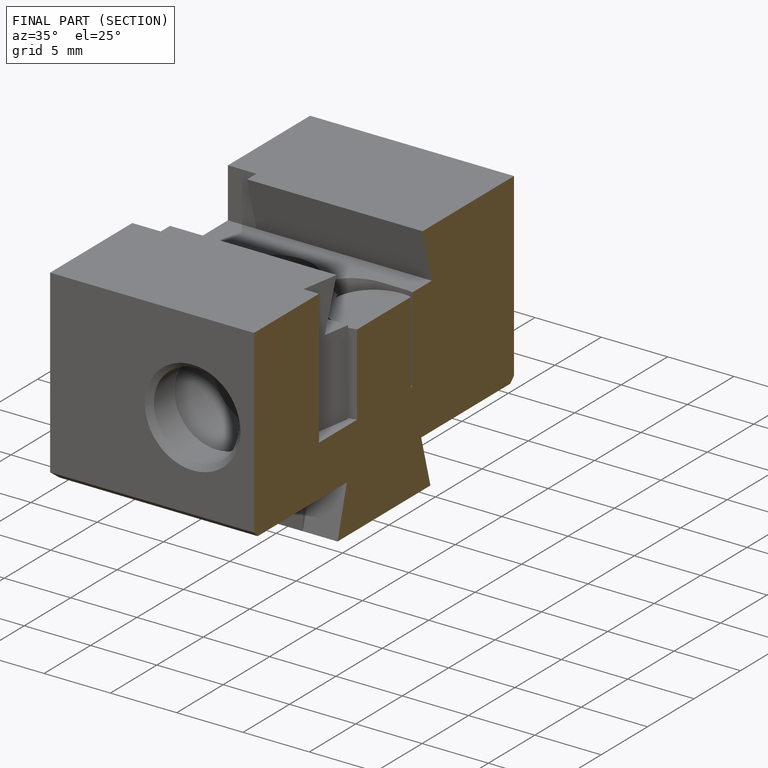
[diagram: finished part — half-section view (interior)]
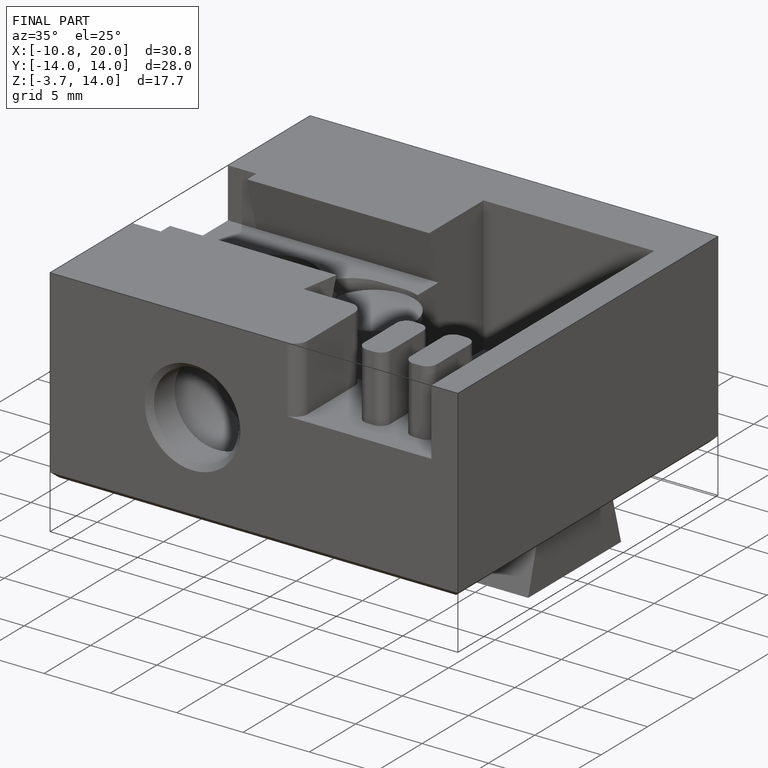
[diagram: finished part — iso view with bounding-box wireframe]
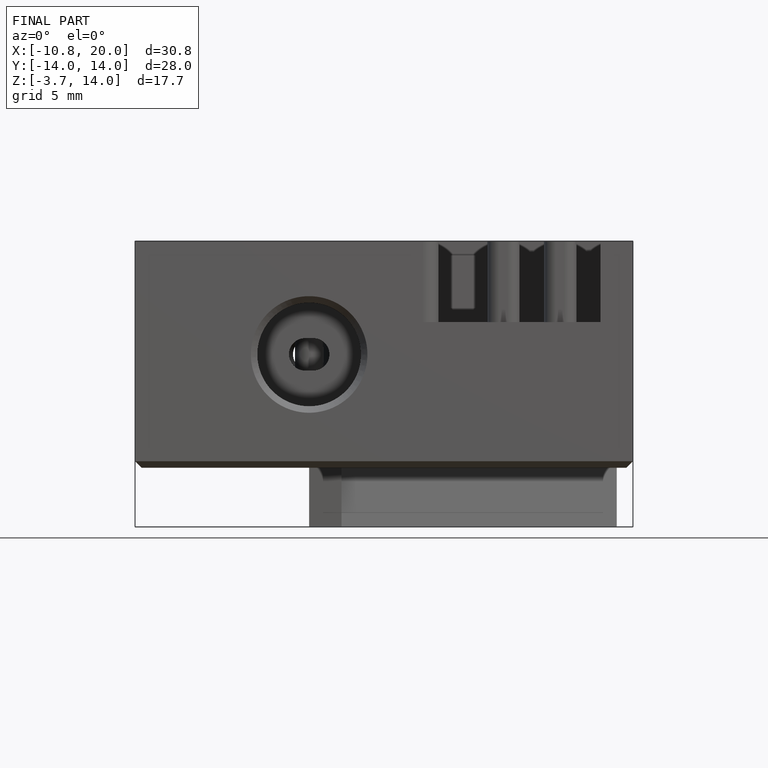
[diagram: finished part — front view with bounding-box wireframe]
